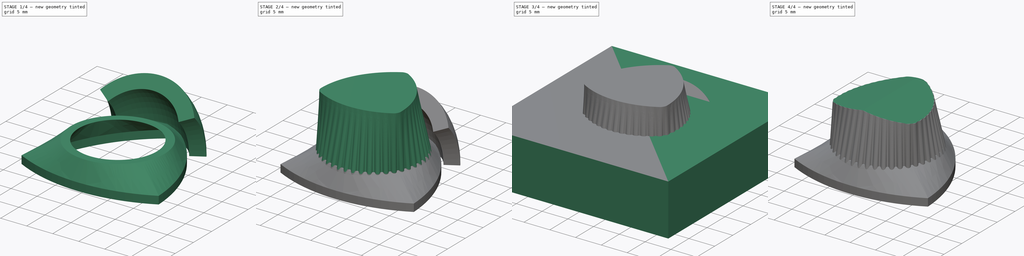
[diagram: build sequence overview — one tinted view per stage of 4, left to right]
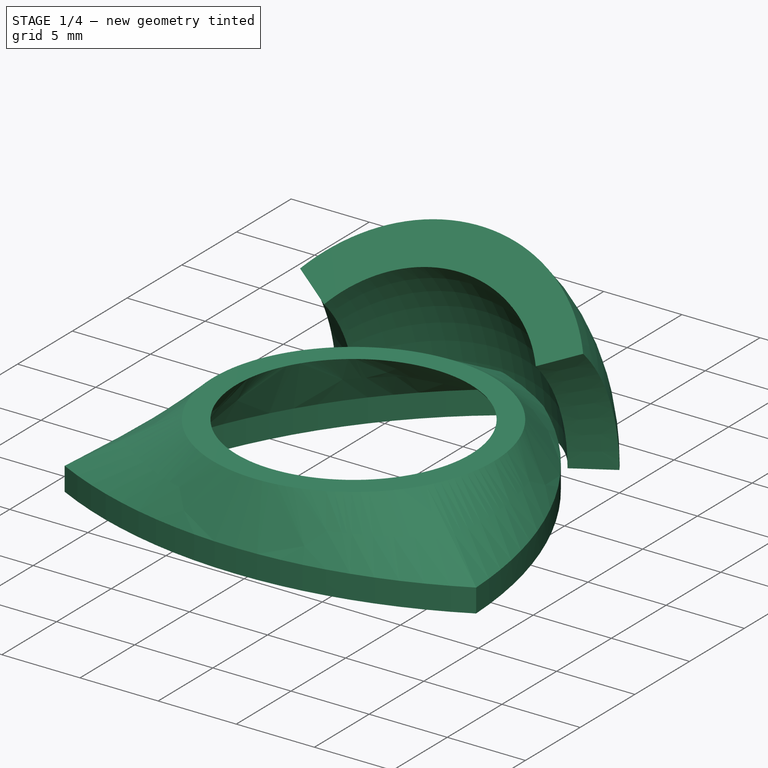
[diagram: stage 1 of 4 — iso view after this stage's code; geometry added in this stage tinted green]
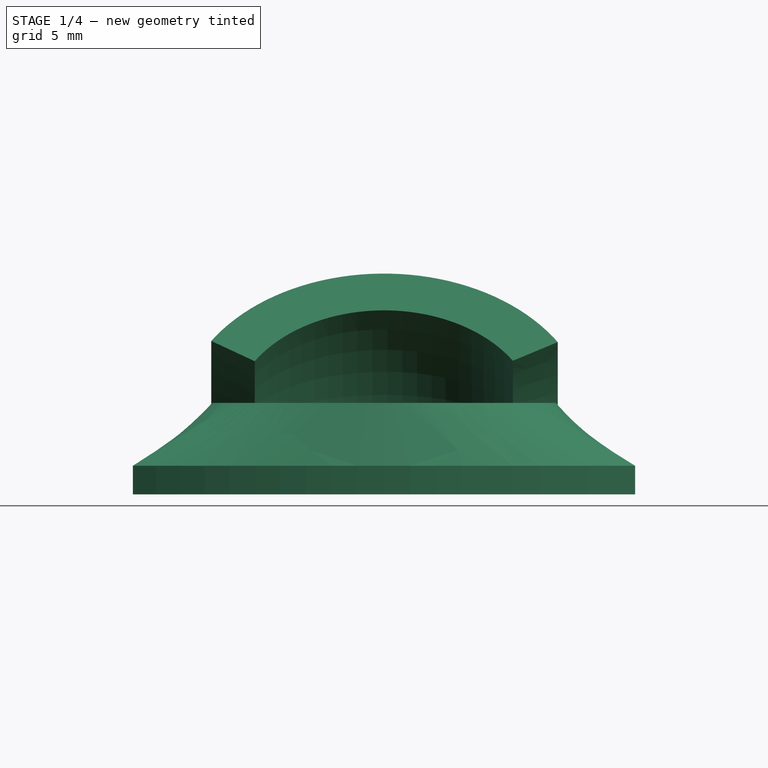
[diagram: stage 1 of 4 — front view after this stage's code; geometry added in this stage tinted green]
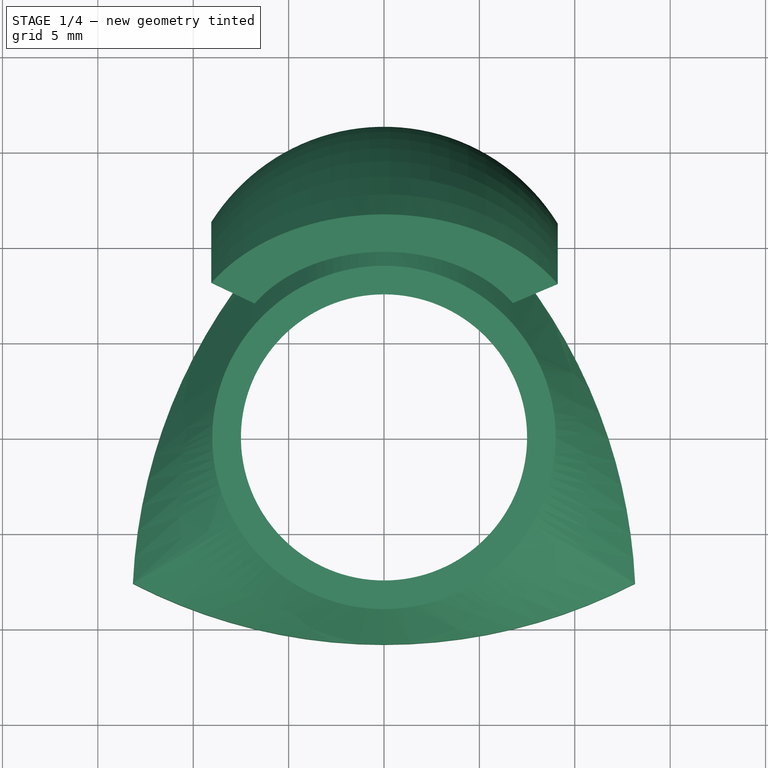
[diagram: stage 1 of 4 — top view after this stage's code; geometry added in this stage tinted green]
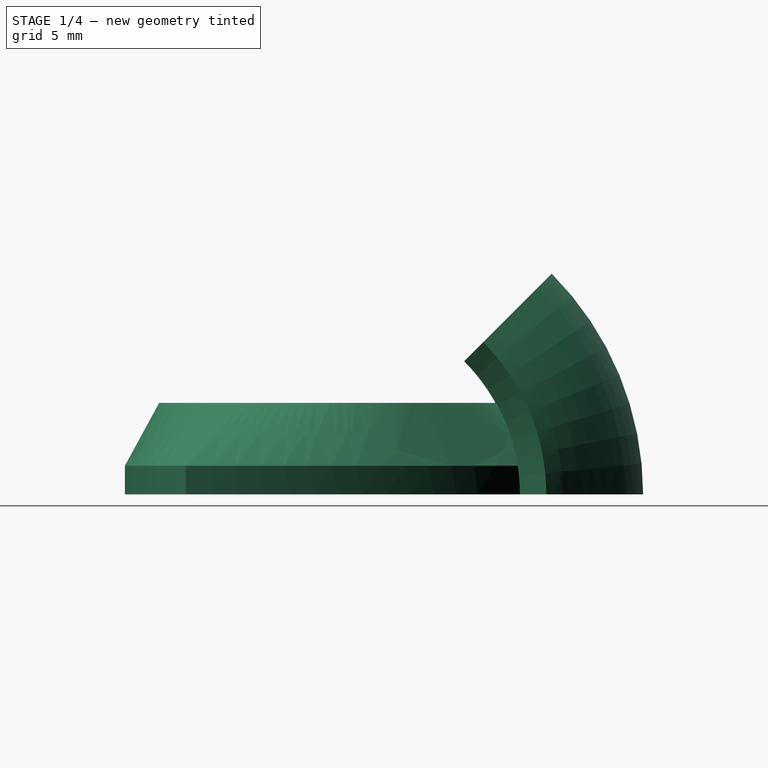
[diagram: stage 1 of 4 — right view after this stage's code; geometry added in this stage tinted green]
FCSTD DOCUMENT  (FreeCAD 0.19R24267 +99 (Git))
Label: knob
License: All rights reserved
LicenseURL: http://en.wikipedia.org/wiki/All_rights_reserved
objects: Sketcher::SketchObject×15, PartDesign::Body×5, PartDesign::Pad×3, PartDesign::Boolean×3, PartDesign::AdditiveLoft×2, PartDesign::Pocket×2, PartDesign::Revolution×1
note: 39 computed .brp shape members not serialized (recipe doc carries the construction recipe); baked Part::Feature solids carry a one-line shape summary decoded from their .brp

FEATURE [Sketcher::SketchObject] Sketch
  FullyConstrained = true
  MapMode = 5
  Support = -> [XY_Plane]
  sketch-geometry (15):
    g0: Circle CenterX=0 CenterY=0 CenterZ=0 NormalX=0 NormalY=0 NormalZ=1 AngleXU=0 Radius=2.9
    g1: Circle CenterX=0 CenterY=0 CenterZ=0 NormalX=0 NormalY=0 NormalZ=1 AngleXU=0 Radius=7.6
    g2: LineSegment StartX=0 StartY=0 StartZ=0 EndX=3e-16 EndY=-10.8 EndZ=0
    g3: LineSegment StartX=-13.1636 StartY=-7.6 StartZ=0 EndX=0 EndY=15.2 EndZ=0
    g4: LineSegment StartX=0 StartY=15.2 StartZ=0 EndX=13.1636 EndY=-7.6 EndZ=0
    g5: LineSegment StartX=13.1636 StartY=-7.6 StartZ=0 EndX=-13.1636 EndY=-7.6 EndZ=0
    g6: ArcOfCircle CenterX=15.4802 CenterY=-8.9375 CenterZ=0 NormalX=0 NormalY=0 NormalZ=1 AngleXU=0 Radius=28.675 StartAngle=2.14106 EndAngle=3.09493
    g7: ArcOfCircle CenterX=-15.4802 CenterY=-8.9375 CenterZ=0 NormalX=0 NormalY=0 NormalZ=1 AngleXU=0 Radius=28.675 StartAngle=0.0466603 EndAngle=1.00054
    g8: ArcOfCircle CenterX=8e-16 CenterY=17.875 CenterZ=0 NormalX=0 NormalY=0 NormalZ=1 AngleXU=0 Radius=28.675 StartAngle=4.23545 EndAngle=5.18933
    g9: LineSegment StartX=-13.1636 StartY=-7.6 StartZ=0 EndX=6.58179 EndY=3.8 EndZ=0
    g10: LineSegment StartX=13.1636 StartY=-7.6 StartZ=0 EndX=-6.58179 EndY=3.8 EndZ=0
    g11: LineSegment StartX=0 StartY=15.2 StartZ=0 EndX=2e-16 EndY=-7.6 EndZ=0
    g12: ArcOfCircle CenterX=17.0588 CenterY=-9.84891 CenterZ=0 NormalX=0 NormalY=0 NormalZ=1 AngleXU=0 Radius=28.675 StartAngle=2.20794 EndAngle=3.02805
    g13: ArcOfCircle CenterX=-17.0588 CenterY=-9.84891 CenterZ=0 NormalX=0 NormalY=0 NormalZ=1 AngleXU=0 Radius=28.675 StartAngle=0.113545 EndAngle=0.933652
    g14: ArcOfCircle CenterX=0 CenterY=19.6978 CenterZ=0 NormalX=0 NormalY=0 NormalZ=1 AngleXU=0 Radius=28.675 StartAngle=4.30234 EndAngle=5.12244
  constraints (44):
    c: Coincident(g0,g-1)
    c: Coincident(g1,g-1)
    c: PointOnObject(g2,g-2)
    c: DistanceY(g2,g2) = 10.8
    c: Diameter(g0) = 5.8
    c: PointOnObject(g3,g-2)
    c: Coincident(g3,g4)
    c: Coincident(g4,g5)
    c: Coincident(g5,g3)
    c: Horizontal(g5)
    c: Tangent(g1,g4)
    c: Tangent(g3,g1)
    c: Tangent(g5,g1)
    c: Equal(g5,g4)
    c: Coincident(g6,g3)
    c: Coincident(g6,g3)
    c: Coincident(g7,g6)
    c: Coincident(g7,g4)
    c: Coincident(g8,g6)
    c: Coincident(g8,g7)
    c: Equal(g6,g8)
    c: Equal(g7,g6)
    c: PointOnObject(g2,g8)
    c: PointOnObject(g2,g-1)
    c: DistanceY(g2,g6) = 26
    c: Coincident(g9,g6)
    c: Coincident(g10,g7)
    c: Coincident(g11,g6)
    c: PointOnObject(g11,g2)
    c: Symmetric(g7,g6,g9)
    c: Symmetric(g6,g6,g10)
    c: Symmetric(g6,g7,g11)
    c: PointOnObject(g12,g10)
    c: PointOnObject(g12,g9)
    c: PointOnObject(g13,g9)
    c: Coincident(g13,g12)
    c: PointOnObject(g13,g10)
    c: PointOnObject(g14,g11)
    c: Coincident(g14,g12)
    c: Coincident(g14,g13)
    c: Distance(g12,g6) = 2
    c: Equal(g12,g13)
    c: Equal(g14,g12)
    c: Equal(g14,g8)
FEATURE [PartDesign::Pad] Pad
  Direction = (1,1,1)
  Length = 1.5
  Length2 = 100
  Profile = -> Sketch
  Refine = true
  Type = 0
FEATURE [Sketcher::SketchObject] Sketch001
  AttachmentOffset = pos=(0,0,4.8) rot=(0,0,1;0rad)
  FullyConstrained = true
  MapMode = 5
  Placement = pos=(0,0,4.8) rot=(0,0,1;0rad)
  Support = -> [XY_Plane]
  sketch-geometry (2):
    g0: Circle CenterX=0 CenterY=0 CenterZ=0 NormalX=0 NormalY=0 NormalZ=1 AngleXU=0 Radius=9
    g1: Circle CenterX=0 CenterY=0 CenterZ=0 NormalX=0 NormalY=0 NormalZ=1 AngleXU=0 Radius=7.5
  constraints (4):
    c: Coincident(g0,g-1)
    c: Diameter(g0) = 18
    c: Coincident(g1,g0)
    c: Diameter(g1) = 15
FEATURE [Sketcher::SketchObject] Sketch002
  AttachmentOffset = pos=(0,0,1.5) rot=(0,0,1;0rad)
  FullyConstrained = true
  MapMode = 5
  Placement = pos=(0,0,1.5) rot=(0,0,1;0rad)
  Support = -> [XY_Plane]
  sketch-geometry (15):
    g0: Circle CenterX=0 CenterY=0 CenterZ=0 NormalX=0 NormalY=0 NormalZ=1 AngleXU=0 Radius=2.9
    g1: Circle CenterX=0 CenterY=0 CenterZ=0 NormalX=0 NormalY=0 NormalZ=1 AngleXU=0 Radius=7.6
    g2: LineSegment StartX=0 StartY=0 StartZ=0 EndX=3e-16 EndY=-10.8 EndZ=0
    g3: LineSegment StartX=-13.1636 StartY=-7.6 StartZ=0 EndX=5.3e-15 EndY=15.2 EndZ=0
    g4: LineSegment StartX=3.6e-15 StartY=15.2 StartZ=0 EndX=13.1636 EndY=-7.6 EndZ=0
    g5: LineSegment StartX=13.1636 StartY=-7.6 StartZ=0 EndX=-13.1636 EndY=-7.6 EndZ=0
    g6: ArcOfCircle CenterX=15.4802 CenterY=-8.9375 CenterZ=0 NormalX=0 NormalY=0 NormalZ=1 AngleXU=0 Radius=28.675 StartAngle=2.14106 EndAngle=3.09493
    g7: ArcOfCircle CenterX=-15.4802 CenterY=-8.9375 CenterZ=0 NormalX=0 NormalY=0 NormalZ=1 AngleXU=0 Radius=28.675 StartAngle=0.0466603 EndAngle=1.00054
    g8: ArcOfCircle CenterX=8e-16 CenterY=17.875 CenterZ=0 NormalX=0 NormalY=0 NormalZ=1 AngleXU=0 Radius=28.675 StartAngle=4.23545 EndAngle=5.18933
    g9: LineSegment StartX=-13.1636 StartY=-7.6 StartZ=0 EndX=6.58179 EndY=3.8 EndZ=0
    g10: LineSegment StartX=13.1636 StartY=-7.6 StartZ=0 EndX=-6.58179 EndY=3.8 EndZ=0
    g11: LineSegment StartX=3.6e-15 StartY=15.2 StartZ=0 EndX=2e-16 EndY=-7.6 EndZ=0
    g12: ArcOfCircle CenterX=17.0588 CenterY=-9.84891 CenterZ=0 NormalX=0 NormalY=0 NormalZ=1 AngleXU=0 Radius=28.675 StartAngle=2.20794 EndAngle=3.02805
    g13: ArcOfCircle CenterX=-17.0588 CenterY=-9.84891 CenterZ=0 NormalX=0 NormalY=0 NormalZ=1 AngleXU=0 Radius=28.675 StartAngle=0.113545 EndAngle=0.933652
    g14: ArcOfCircle CenterX=0 CenterY=19.6978 CenterZ=0 NormalX=0 NormalY=0 NormalZ=1 AngleXU=0 Radius=28.675 StartAngle=4.30234 EndAngle=5.12244
  constraints (44):
    c: Coincident(g0,g-1)
    c: Coincident(g1,g-1)
    c: PointOnObject(g2,g-2)
    c: DistanceY(g2,g2) = 10.8
    c: Diameter(g0) = 5.8
    c: PointOnObject(g3,g-2)
    c: Coincident(g3,g4)
    c: Coincident(g4,g5)
    c: Coincident(g5,g3)
    c: Horizontal(g5)
    c: Tangent(g1,g4)
    c: Tangent(g3,g1)
    c: Tangent(g5,g1)
    c: Equal(g5,g4)
    c: Coincident(g6,g3)
    c: Coincident(g6,g3)
    c: Coincident(g7,g6)
    c: Coincident(g7,g4)
    c: Coincident(g8,g6)
    c: Coincident(g8,g7)
    c: Equal(g6,g8)
    c: Equal(g7,g6)
    c: PointOnObject(g2,g8)
    c: PointOnObject(g2,g-1)
    c: DistanceY(g2,g6) = 26
    c: Coincident(g9,g6)
    c: Coincident(g10,g7)
    c: Coincident(g11,g6)
    c: PointOnObject(g11,g2)
    c: Symmetric(g7,g6,g9)
    c: Symmetric(g6,g6,g10)
    c: Symmetric(g6,g7,g11)
    c: PointOnObject(g12,g10)
    c: PointOnObject(g12,g9)
    c: PointOnObject(g13,g9)
    c: Coincident(g13,g12)
    c: PointOnObject(g13,g10)
    c: PointOnObject(g14,g11)
    c: Coincident(g14,g12)
    c: Coincident(g14,g13)
    c: Distance(g12,g6) = 2
    c: Equal(g12,g13)
    c: Equal(g14,g12)
    c: Equal(g14,g8)
FEATURE [PartDesign::AdditiveLoft] AdditiveLoft
  BaseFeature = -> Pad
  Closed = false
  Profile = -> Sketch002
  Refine = true
  Ruled = false
  Sections = -> [Sketch001]
FEATURE [Sketcher::SketchObject] Sketch006010
  FullyConstrained = false
  MapMode = 5
  Support = -> [XY_Plane004]
  sketch-geometry (4):
    g0: ArcOfCircle CenterX=0 CenterY=5.66957 CenterZ=0 NormalX=0 NormalY=0 NormalZ=1 AngleXU=0 Radius=7.97288 StartAngle=0.560165 EndAngle=2.58653
    g1: ArcOfCircle CenterX=0 CenterY=5.66957 CenterZ=0 NormalX=0 NormalY=0 NormalZ=1 AngleXU=0 Radius=10.6993 StartAngle=0.552892 EndAngle=2.57958
    g2: LineSegment StartX=-6.77591 StartY=9.87123 StartZ=0 EndX=-9.05362 EndY=11.3711 EndZ=0
    g3: LineSegment StartX=6.75436 StartY=9.90577 StartZ=0 EndX=9.10523 EndY=11.2883 EndZ=0
  constraints (6):
    c: PointOnObject(g0,g-2)
    c: Coincident(g1,g0)
    c: Coincident(g1,g3)
    c: Coincident(g1,g2)
    c: Coincident(g0,g3)
    c: Coincident(g0,g2)
FEATURE [PartDesign::Revolution] Revolution
  Angle = 45
  Axis = (1,0,0)
  Base = (0,0,0)
  Profile = -> Sketch006010
  ReferenceAxis = -> X_Axis004
  Refine = true
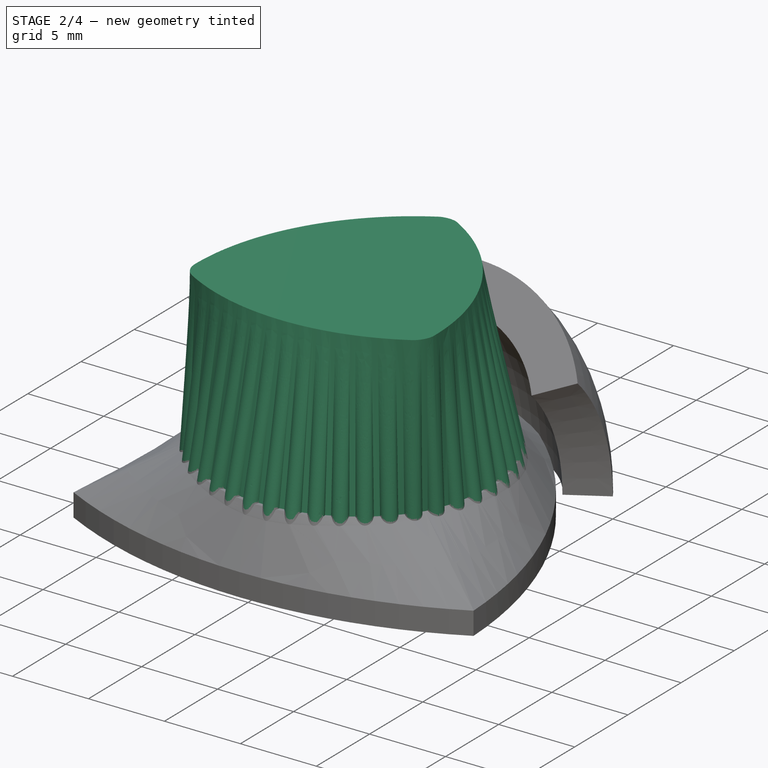
[diagram: stage 2 of 4 — iso view after this stage's code; geometry added in this stage tinted green]
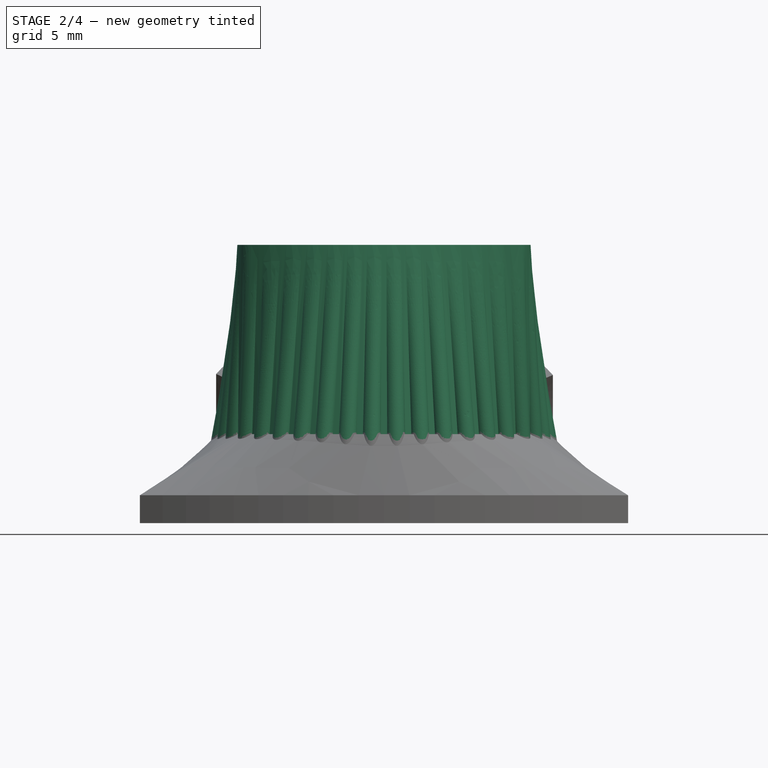
[diagram: stage 2 of 4 — front view after this stage's code; geometry added in this stage tinted green]
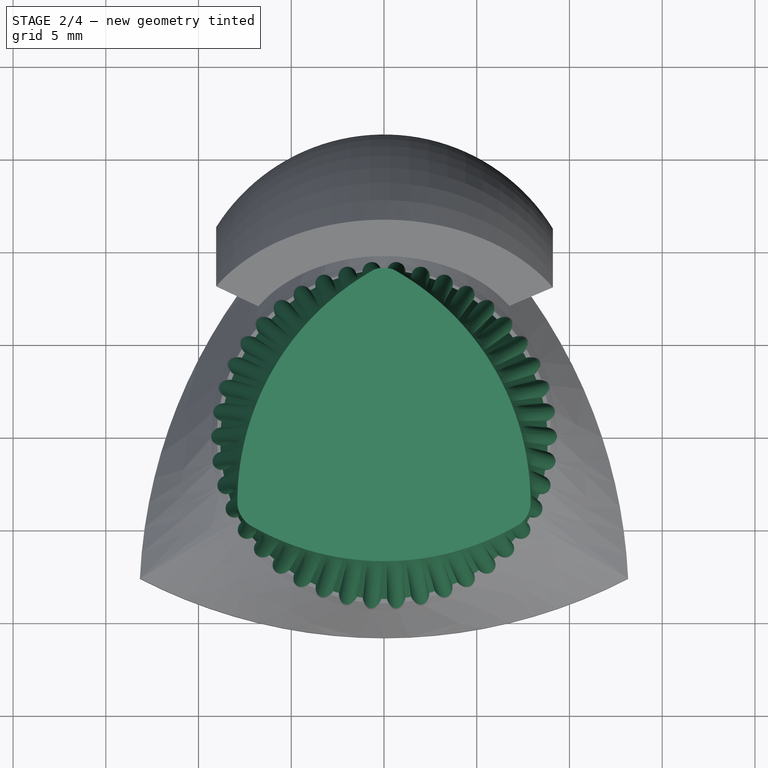
[diagram: stage 2 of 4 — top view after this stage's code; geometry added in this stage tinted green]
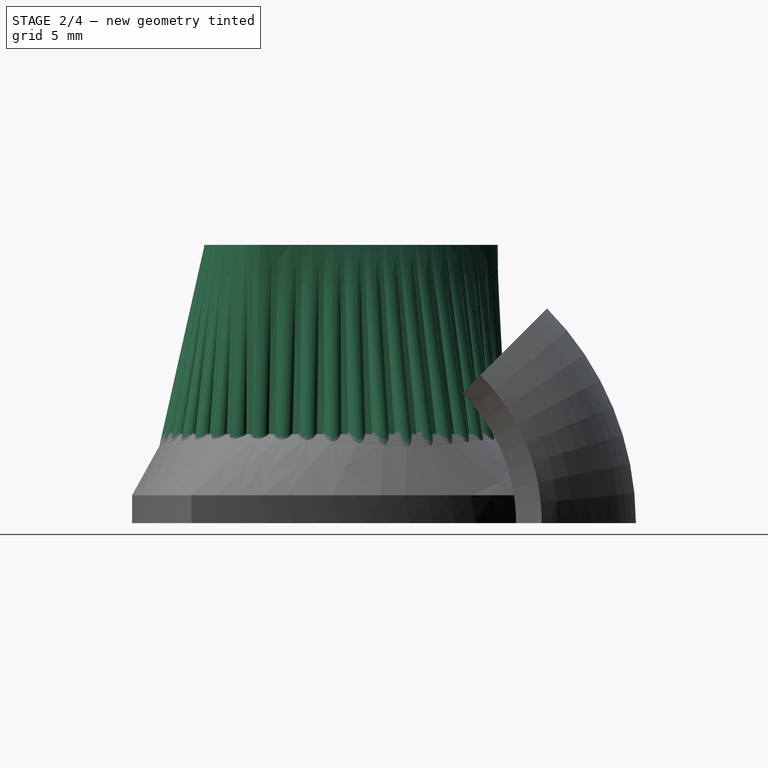
[diagram: stage 2 of 4 — right view after this stage's code; geometry added in this stage tinted green]
FEATURE [Sketcher::SketchObject] Sketch003
  AttachmentOffset = pos=(0,0,4.3) rot=(0,0,1;0rad)
  FullyConstrained = true
  MapMode = 5
  Placement = pos=(0,0,4.3) rot=(0,0,1;0rad)
  Support = -> [XY_Plane]
  sketch-geometry (2):
    g0: Circle CenterX=0 CenterY=0 CenterZ=0 NormalX=0 NormalY=0 NormalZ=1 AngleXU=0 Radius=9
    g1: Circle CenterX=0 CenterY=0 CenterZ=0 NormalX=0 NormalY=0 NormalZ=1 AngleXU=0 Radius=7.5
  constraints (4):
    c: Coincident(g0,g-1)
    c: Diameter(g0) = 18
    c: Coincident(g1,g0)
    c: Diameter(g1) = 15
FEATURE [Sketcher::SketchObject] Sketch004
  AttachmentOffset = pos=(0,0,15) rot=(0,0,1;0rad)
  FullyConstrained = true
  MapMode = 5
  Placement = pos=(0,0,15) rot=(0,0,1;0rad)
  Support = -> [XY_Plane]
  sketch-geometry (15):
    g0: Circle CenterX=0 CenterY=0 CenterZ=0 NormalX=0 NormalY=0 NormalZ=1 AngleXU=0 Radius=2.9
    g1: Circle CenterX=0 CenterY=0 CenterZ=0 NormalX=0 NormalY=0 NormalZ=1 AngleXU=0 Radius=4.55
    g2: LineSegment StartX=0 StartY=0 StartZ=0 EndX=-5e-16 EndY=-6.9 EndZ=0
    g3: LineSegment StartX=-7.88083 StartY=-4.55 StartZ=0 EndX=9e-16 EndY=9.1 EndZ=0
    g4: LineSegment StartX=0 StartY=9.1 StartZ=0 EndX=7.88083 EndY=-4.55 EndZ=0
    g5: LineSegment StartX=7.88083 StartY=-4.55 StartZ=0 EndX=-7.88083 EndY=-4.55 EndZ=0
    g6: ArcOfCircle CenterX=6.48598 CenterY=-3.74468 CenterZ=0 NormalX=0 NormalY=0 NormalZ=1 AngleXU=0 Radius=14.3894 StartAngle=2.0384 EndAngle=3.19759
    g7: ArcOfCircle CenterX=-6.48598 CenterY=-3.74468 CenterZ=0 NormalX=0 NormalY=0 NormalZ=1 AngleXU=0 Radius=14.3894 StartAngle=6.22719 EndAngle=7.38638
    g8: ArcOfCircle CenterX=-1.6e-15 CenterY=7.48936 CenterZ=0 NormalX=0 NormalY=0 NormalZ=1 AngleXU=0 Radius=14.3894 StartAngle=4.13279 EndAngle=5.29198
    g9: LineSegment StartX=-7.88083 StartY=-4.55 StartZ=0 EndX=3.94042 EndY=2.275 EndZ=0
    g10: LineSegment StartX=7.88083 StartY=-4.55 StartZ=0 EndX=-3.94042 EndY=2.275 EndZ=0
    g11: LineSegment StartX=0 StartY=9.1 StartZ=0 EndX=-3e-16 EndY=-4.55 EndZ=0
    g12: ArcOfCircle CenterX=8.19214 CenterY=-4.72973 CenterZ=0 NormalX=0 NormalY=0 NormalZ=1 AngleXU=0 Radius=14.3894 StartAngle=2.17647 EndAngle=3.05951
    g13: ArcOfCircle CenterX=-8.19214 CenterY=-4.72973 CenterZ=0 NormalX=0 NormalY=0 NormalZ=1 AngleXU=0 Radius=14.3894 StartAngle=0.0820786 EndAngle=0.965119
    g14: ArcOfCircle CenterX=0 CenterY=9.45947 CenterZ=0 NormalX=0 NormalY=0 NormalZ=1 AngleXU=0 Radius=14.3894 StartAngle=4.27087 EndAngle=5.15391
  constraints (44):
    c: Coincident(g0,g-1)
    c: Coincident(g1,g-1)
    c: PointOnObject(g2,g-2)
    c: Diameter(g0) = 5.8
    c: PointOnObject(g3,g-2)
    c: Coincident(g3,g4)
    c: Coincident(g4,g5)
    c: Coincident(g5,g3)
    c: Horizontal(g5)
    c: Tangent(g1,g4)
    c: Tangent(g3,g1)
    c: Tangent(g5,g1)
    c: Equal(g5,g4)
    c: Coincident(g6,g3)
    c: Coincident(g6,g3)
    c: Coincident(g7,g6)
    c: Coincident(g7,g4)
    c: Coincident(g8,g6)
    c: Coincident(g8,g7)
    c: Equal(g6,g8)
    c: Equal(g7,g6)
    c: PointOnObject(g2,g8)
    c: PointOnObject(g2,g-1)
    c: DistanceY(g2,g6) = 16
    c: Coincident(g9,g6)
    c: Coincident(g10,g7)
    c: Coincident(g11,g6)
    c: PointOnObject(g11,g2)
    c: Symmetric(g7,g6,g9)
    c: Symmetric(g6,g6,g10)
    c: Symmetric(g6,g7,g11)
    c: PointOnObject(g12,g10)
    c: PointOnObject(g12,g9)
    c: PointOnObject(g13,g9)
    c: Coincident(g13,g12)
    c: PointOnObject(g13,g10)
    c: PointOnObject(g14,g11)
    c: Coincident(g14,g12)
    c: Coincident(g14,g13)
    c: Distance(g12,g6) = 2
    c: Equal(g12,g13)
    c: Equal(g14,g12)
    c: Equal(g14,g8)
    c: DistanceY(g2,g2) = 6.9
FEATURE [Sketcher::SketchObject] Sketch005
  AttachmentOffset = pos=(0,0,13.5) rot=(0,0,1;0rad)
  FullyConstrained = true
  MapMode = 5
  Placement = pos=(0,0,13.5) rot=(0,0,1;0rad)
  Support = -> [XY_Plane]
  sketch-geometry (11):
    g0: Circle CenterX=0 CenterY=0 CenterZ=0 NormalX=0 NormalY=0 NormalZ=1 AngleXU=0 Radius=4.55
    g1: LineSegment StartX=0 StartY=0 StartZ=0 EndX=-5e-16 EndY=-6.9 EndZ=0
    g2: LineSegment StartX=-7.88083 StartY=-4.55 StartZ=0 EndX=-1.4673e-12 EndY=9.1 EndZ=0
    g3: LineSegment StartX=-1.4673e-12 StartY=9.1 StartZ=0 EndX=7.88083 EndY=-4.55 EndZ=0
    g4: LineSegment StartX=7.88083 StartY=-4.55 StartZ=0 EndX=-7.88083 EndY=-4.55 EndZ=0
    g5: ArcOfCircle CenterX=6.48598 CenterY=-3.74468 CenterZ=0 NormalX=0 NormalY=0 NormalZ=1 AngleXU=0 Radius=14.3894 StartAngle=2.0384 EndAngle=3.19759
    g6: ArcOfCircle CenterX=-6.48598 CenterY=-3.74468 CenterZ=0 NormalX=0 NormalY=0 NormalZ=1 AngleXU=0 Radius=14.3894 StartAngle=6.22719 EndAngle=7.38638
    g7: ArcOfCircle CenterX=-1.6e-15 CenterY=7.48936 CenterZ=0 NormalX=0 NormalY=0 NormalZ=1 AngleXU=0 Radius=14.3894 StartAngle=4.13279 EndAngle=5.29198
    g8: LineSegment StartX=-7.88083 StartY=-4.55 StartZ=0 EndX=3.94042 EndY=2.275 EndZ=0
    g9: LineSegment StartX=7.88083 StartY=-4.55 StartZ=0 EndX=-3.94042 EndY=2.275 EndZ=0
    g10: LineSegment StartX=-1.4673e-12 StartY=9.1 StartZ=0 EndX=-3e-16 EndY=-4.55 EndZ=0
  constraints (30):
    c: Coincident(g0,g-1)
    c: PointOnObject(g1,g-2)
    c: PointOnObject(g2,g-2)
    c: Coincident(g2,g3)
    c: Coincident(g3,g4)
    c: Coincident(g4,g2)
    c: Horizontal(g4)
    c: Tangent(g0,g3)
    c: Tangent(g2,g0)
    c: Tangent(g4,g0)
    c: Equal(g4,g3)
    c: Coincident(g5,g2)
    c: Coincident(g5,g2)
    c: Coincident(g6,g5)
    c: Coincident(g6,g3)
    c: Coincident(g7,g5)
    c: Coincident(g7,g6)
    c: Equal(g5,g7)
    c: Equal(g6,g5)
    c: PointOnObject(g1,g7)
    c: PointOnObject(g1,g-1)
    c: DistanceY(g1,g5) = 16
    c: Coincident(g8,g5)
    c: Coincident(g9,g6)
    c: Coincident(g10,g5)
    c: PointOnObject(g10,g1)
    c: Symmetric(g6,g5,g8)
    c: Symmetric(g5,g5,g9)
    c: Symmetric(g5,g6,g10)
    c: DistanceY(g1,g1) = 6.9
FEATURE [Sketcher::SketchObject] Sketch006
  AttachmentOffset = pos=(0,0,15) rot=(0,0,1;0rad)
  FullyConstrained = false
  MapMode = 5
  Placement = pos=(0,0,15) rot=(0,0,1;0rad)
  Support = -> [XY_Plane]
  sketch-geometry (18):
    g0: Circle CenterX=0 CenterY=0 CenterZ=0 NormalX=0 NormalY=0 NormalZ=1 AngleXU=0 Radius=2.9
    g1: Circle CenterX=0 CenterY=0 CenterZ=0 NormalX=0 NormalY=0 NormalZ=1 AngleXU=0 Radius=4.55
    g2: LineSegment StartX=0 StartY=0 StartZ=0 EndX=-0.0160552 EndY=-6.9 EndZ=0
    g3: LineSegment StartX=-7.88083 StartY=-4.55 StartZ=0 EndX=0 EndY=9.1 EndZ=0
    g4: LineSegment StartX=0 StartY=9.1 StartZ=0 EndX=7.88083 EndY=-4.55 EndZ=0
    g5: LineSegment StartX=7.88083 StartY=-4.55 StartZ=0 EndX=-7.88083 EndY=-4.55 EndZ=0
    g6: ArcOfCircle CenterX=6.4972 CenterY=-3.75116 CenterZ=0 NormalX=0 NormalY=0 NormalZ=1 AngleXU=0 Radius=14.405 StartAngle=2.0809 EndAngle=3.13764
    g7: ArcOfCircle CenterX=-6.50196 CenterY=-3.74998 CenterZ=0 NormalX=0 NormalY=0 NormalZ=1 AngleXU=0 Radius=14.405 StartAngle=6.27367 EndAngle=7.34371
    g8: ArcOfCircle CenterX=-0.00467443 CenterY=7.50501 CenterZ=0 NormalX=0 NormalY=0 NormalZ=1 AngleXU=0 Radius=14.405 StartAngle=4.1927 EndAngle=5.24556
    g9: LineSegment StartX=-7.88083 StartY=-4.55 StartZ=0 EndX=3.94042 EndY=2.275 EndZ=0
    g10: LineSegment StartX=7.88083 StartY=-4.55 StartZ=0 EndX=-3.94042 EndY=2.275 EndZ=0
    g11: LineSegment StartX=0 StartY=9.1 StartZ=0 EndX=-0.0105869 EndY=-4.54993 EndZ=0
    g12: ArcOfCircle CenterX=8.20725 CenterY=-4.73846 CenterZ=0 NormalX=0 NormalY=0 NormalZ=1 AngleXU=0 Radius=14.405 StartAngle=2.17698 EndAngle=3.05899
    g13: ArcOfCircle CenterX=-8.20702 CenterY=-4.73832 CenterZ=0 NormalX=0 NormalY=0 NormalZ=1 AngleXU=0 Radius=14.405 StartAngle=0.0825822 EndAngle=0.964597
    g14: ArcOfCircle CenterX=0.000292234 CenterY=9.47678 CenterZ=0 NormalX=0 NormalY=0 NormalZ=1 AngleXU=0 Radius=14.405 StartAngle=4.27137 EndAngle=5.15338
    g15: ArcOfCircle CenterX=-0.00131853 CenterY=7.4 CenterZ=0 NormalX=0 NormalY=0 NormalZ=1 AngleXU=0 Radius=1.51744 StartAngle=1.21048 EndAngle=1.93111
    g16: ArcOfCircle CenterX=-6.40846 CenterY=-3.69992 CenterZ=0 NormalX=0 NormalY=0 NormalZ=1 AngleXU=0 Radius=1.49926 StartAngle=3.13776 EndAngle=4.18857
    g17: ArcOfCircle CenterX=6.39736 CenterY=-3.69352 CenterZ=0 NormalX=0 NormalY=0 NormalZ=1 AngleXU=0 Radius=1.51744 StartAngle=5.36344 EndAngle=6.15534
  constraints (52):
    c: Coincident(g0,g-1)
    c: Coincident(g1,g-1)
    c: PointOnObject(g2,g-2)
    c: Diameter(g0) = 5.8
    c: PointOnObject(g3,g-2)
    c: Coincident(g3,g4)
    c: Coincident(g4,g5)
    c: Coincident(g5,g3)
    c: Horizontal(g5)
    c: Tangent(g1,g4)
    c: Tangent(g3,g1)
    c: Tangent(g5,g1)
    c: Equal(g5,g4)
    c: Equal(g6,g8)
    c: Equal(g7,g6)
    c: PointOnObject(g2,g8)
    c: PointOnObject(g2,g-1)
    c: DistanceY(g2,g3) = 16
    c: Coincident(g9,g3)
    c: Coincident(g10,g4)
    c: Coincident(g11,g3)
    c: PointOnObject(g11,g2)
    c: PointOnObject(g12,g10)
    c: PointOnObject(g12,g9)
    c: PointOnObject(g13,g9)
    c: Coincident(g13,g12)
    c: PointOnObject(g13,g10)
    c: PointOnObject(g14,g11)
    c: Coincident(g14,g12)
    c: Coincident(g14,g13)
    c: Distance(g12,g3) = 2
    c: Equal(g12,g13)
    c: Equal(g14,g12)
    c: Equal(g14,g8)
    c: DistanceY(g2,g2) = 6.9
    c: PointOnObject(g15,g11)
    c: Coincident(g6,g15)
    c: Coincident(g7,g15)
    c: DistanceY(g12,g15) = 0.3
    c: DistanceX(g6,g7) = 1.07
    c: Horizontal(g6,g7)
    c: DistanceY(g6,g3) = 0.28
    c: PointOnObject(g16,g9)
    c: Distance(g16,g12) = 0.3
    c: Coincident(g6,g16)
    c: Coincident(g8,g16)
    c: PointOnObject(g17,g10)
    c: Symmetric(g3,g3,g10)
    c: PointOnObject(g6,g10)
    c: Equal(g17,g15)
    c: Coincident(g17,g8)
    c: Coincident(g17,g7)
FEATURE [Sketcher::SketchObject] Sketch007
  AttachmentOffset = pos=(0,0,6) rot=(0,0,1;0rad)
  FullyConstrained = true
  MapMode = 5
  Placement = pos=(0,0,6) rot=(0,0,1;0rad)
  Support = -> [XY_Plane]
  sketch-geometry (2):
    g0: Circle CenterX=0 CenterY=0 CenterZ=0 NormalX=0 NormalY=0 NormalZ=1 AngleXU=0 Radius=3
    g1: Circle CenterX=0 CenterY=0 CenterZ=0 NormalX=0 NormalY=0 NormalZ=1 AngleXU=0 Radius=5
  constraints (4):
    c: Coincident(g0,g-1)
    c: Diameter(g0) = 6
    c: Coincident(g1,g0)
    c: Diameter(g1) = 10
FEATURE [Sketcher::SketchObject] Sketch008
  AttachmentOffset = pos=(0,0,4.3) rot=(0,0,1;0rad)
  FullyConstrained = true
  MapMode = 5
  Placement = pos=(0,0,4.3) rot=(0,0,1;0rad)
  Support = -> [XY_Plane]
  sketch-geometry (2):
    g0: Circle CenterX=0 CenterY=0 CenterZ=0 NormalX=0 NormalY=0 NormalZ=1 AngleXU=0 Radius=9
    g1: Circle CenterX=0 CenterY=0 CenterZ=0 NormalX=0 NormalY=0 NormalZ=1 AngleXU=0 Radius=7.5
  constraints (4):
    c: Coincident(g0,g-1)
    c: Diameter(g0) = 18
    c: Coincident(g1,g0)
    c: Diameter(g1) = 15
FEATURE [Sketcher::SketchObject] Sketch006004
  FullyConstrained = false
  Placement = pos=(0,0,3.5) rot=(0,0,1;0rad)
  sketch-geometry (105):
    g0: ArcOfCircle CenterX=0 CenterY=0 CenterZ=0 NormalX=0 NormalY=0 NormalZ=1 AngleXU=0 Radius=9 StartAngle=6.18915 EndAngle=6.22762
    g1: ArcOfCircle CenterX=9 CenterY=0 CenterZ=0 NormalX=0 NormalY=0 NormalZ=1 AngleXU=0 Radius=0.5 StartAngle=4.68461 EndAngle=6.28319
    g2: ArcOfCircle CenterX=9 CenterY=0 CenterZ=0 NormalX=0 NormalY=0 NormalZ=1 AngleXU=0 Radius=0.5 StartAngle=0 EndAngle=1.59858
    g3: ArcOfCircle CenterX=0 CenterY=0 CenterZ=0 NormalX=0 NormalY=0 NormalZ=1 AngleXU=0 Radius=9 StartAngle=0.0555627 EndAngle=0.0940369
    g4: ArcOfCircle CenterX=8.89948 CenterY=1.34138 CenterZ=0 NormalX=0 NormalY=0 NormalZ=1 AngleXU=0 Radius=0.5 StartAngle=4.83421 EndAngle=6.28319
    g5: ArcOfCircle CenterX=8.89948 CenterY=1.34138 CenterZ=0 NormalX=0 NormalY=0 NormalZ=1 AngleXU=0 Radius=0.5 StartAngle=0 EndAngle=1.74818
    g6: ArcOfCircle CenterX=0 CenterY=0 CenterZ=0 NormalX=0 NormalY=0 NormalZ=1 AngleXU=0 Radius=9 StartAngle=0.205162 EndAngle=0.243637
    g7: ArcOfCircle CenterX=8.60016 CenterY=2.6528 CenterZ=0 NormalX=0 NormalY=0 NormalZ=1 AngleXU=0 Radius=0.5 StartAngle=4.98381 EndAngle=6.28319
    g8: ArcOfCircle CenterX=8.60016 CenterY=2.6528 CenterZ=0 NormalX=0 NormalY=0 NormalZ=1 AngleXU=0 Radius=0.5 StartAngle=0 EndAngle=1.89778
    g9: ArcOfCircle CenterX=0 CenterY=0 CenterZ=0 NormalX=0 NormalY=0 NormalZ=1 AngleXU=0 Radius=9 StartAngle=0.354762 EndAngle=0.393236
    g10: ArcOfCircle CenterX=8.10872 CenterY=3.90495 CenterZ=0 NormalX=0 NormalY=0 NormalZ=1 AngleXU=0 Radius=0.5 StartAngle=5.13341 EndAngle=6.28319
    g11: ArcOfCircle CenterX=8.10872 CenterY=3.90495 CenterZ=0 NormalX=0 NormalY=0 NormalZ=1 AngleXU=0 Radius=0.5 StartAngle=0 EndAngle=2.04738
    g12: ArcOfCircle CenterX=0 CenterY=0 CenterZ=0 NormalX=0 NormalY=0 NormalZ=1 AngleXU=0 Radius=9 StartAngle=0.504362 EndAngle=0.542836
    g13: ArcOfCircle CenterX=7.43615 CenterY=5.06988 CenterZ=0 NormalX=0 NormalY=0 NormalZ=1 AngleXU=0 Radius=0.5 StartAngle=5.28301 EndAngle=6.28319
    g14: ArcOfCircle CenterX=7.43615 CenterY=5.06988 CenterZ=0 NormalX=0 NormalY=0 NormalZ=1 AngleXU=0 Radius=0.5 StartAngle=0 EndAngle=2.19698
    g15: ArcOfCircle CenterX=0 CenterY=0 CenterZ=0 NormalX=0 NormalY=0 NormalZ=1 AngleXU=0 Radius=9 StartAngle=0.653961 EndAngle=0.692436
    g16: ArcOfCircle CenterX=6.59747 CenterY=6.12155 CenterZ=0 NormalX=0 NormalY=0 NormalZ=1 AngleXU=0 Radius=0.5 StartAngle=5.43261 EndAngle=6.28319
    g17: ArcOfCircle CenterX=6.59747 CenterY=6.12155 CenterZ=0 NormalX=0 NormalY=0 NormalZ=1 AngleXU=0 Radius=0.5 StartAngle=0 EndAngle=2.34658
    g18: ArcOfCircle CenterX=0 CenterY=0 CenterZ=0 NormalX=0 NormalY=0 NormalZ=1 AngleXU=0 Radius=9 StartAngle=0.803561 EndAngle=0.842035
    g19: ArcOfCircle CenterX=5.61141 CenterY=7.03648 CenterZ=0 NormalX=0 NormalY=0 NormalZ=1 AngleXU=0 Radius=0.5 StartAngle=5.58221 EndAngle=6.28319
    g20: ArcOfCircle CenterX=5.61141 CenterY=7.03648 CenterZ=0 NormalX=0 NormalY=0 NormalZ=1 AngleXU=0 Radius=0.5 StartAngle=0 EndAngle=2.49618
    g21: ArcOfCircle CenterX=0 CenterY=0 CenterZ=0 NormalX=0 NormalY=0 NormalZ=1 AngleXU=0 Radius=9 StartAngle=0.953161 EndAngle=0.991635
    g22: ArcOfCircle CenterX=4.5 CenterY=7.79423 CenterZ=0 NormalX=0 NormalY=0 NormalZ=1 AngleXU=0 Radius=0.5 StartAngle=5.73181 EndAngle=6.28319
    g23: ArcOfCircle CenterX=4.5 CenterY=7.79423 CenterZ=0 NormalX=0 NormalY=0 NormalZ=1 AngleXU=0 Radius=0.5 StartAngle=0 EndAngle=2.64578
    g24: ArcOfCircle CenterX=0 CenterY=0 CenterZ=0 NormalX=0 NormalY=0 NormalZ=1 AngleXU=0 Radius=9 StartAngle=1.10276 EndAngle=1.14123
    g25: ArcOfCircle CenterX=3.28807 CenterY=8.37786 CenterZ=0 NormalX=0 NormalY=0 NormalZ=1 AngleXU=0 Radius=0.5 StartAngle=5.8814 EndAngle=6.28319
    g26: ArcOfCircle CenterX=3.28807 CenterY=8.37786 CenterZ=0 NormalX=0 NormalY=0 NormalZ=1 AngleXU=0 Radius=0.5 StartAngle=0 EndAngle=2.79537
    g27: ArcOfCircle CenterX=0 CenterY=0 CenterZ=0 NormalX=0 NormalY=0 NormalZ=1 AngleXU=0 Radius=9 StartAngle=1.25236 EndAngle=1.29083
    g28: ArcOfCircle CenterX=2.00269 CenterY=8.77435 CenterZ=0 NormalX=0 NormalY=0 NormalZ=1 AngleXU=0 Radius=0.5 StartAngle=6.031 EndAngle=6.28319
    g29: ArcOfCircle CenterX=2.00269 CenterY=8.77435 CenterZ=0 NormalX=0 NormalY=0 NormalZ=1 AngleXU=0 Radius=0.5 StartAngle=0 EndAngle=2.94497
    g30: ArcOfCircle CenterX=0 CenterY=0 CenterZ=0 NormalX=0 NormalY=0 NormalZ=1 AngleXU=0 Radius=9 StartAngle=1.40196 EndAngle=1.44043
    g31: ArcOfCircle CenterX=0.672571 CenterY=8.97483 CenterZ=0 NormalX=0 NormalY=0 NormalZ=1 AngleXU=0 Radius=0.5 StartAngle=6.1806 EndAngle=6.28319
    g32: ArcOfCircle CenterX=0.672571 CenterY=8.97483 CenterZ=0 NormalX=0 NormalY=0 NormalZ=1 AngleXU=0 Radius=0.5 StartAngle=0 EndAngle=3.09457
    g33: ArcOfCircle CenterX=0 CenterY=0 CenterZ=0 NormalX=0 NormalY=0 NormalZ=1 AngleXU=0 Radius=9 StartAngle=1.55156 EndAngle=1.59003
    g34: ArcOfCircle CenterX=-0.672571 CenterY=8.97483 CenterZ=0 NormalX=0 NormalY=0 NormalZ=1 AngleXU=0 Radius=0.5 StartAngle=0.0470185 EndAngle=3.24417
    g35: ArcOfCircle CenterX=0 CenterY=0 CenterZ=0 NormalX=0 NormalY=0 NormalZ=1 AngleXU=0 Radius=9 StartAngle=1.70116 EndAngle=1.73963
    g36: ArcOfCircle CenterX=-2.00269 CenterY=8.77435 CenterZ=0 NormalX=0 NormalY=0 NormalZ=1 AngleXU=0 Radius=0.5 StartAngle=0.196618 EndAngle=3.39377
    g37: ArcOfCircle CenterX=0 CenterY=0 CenterZ=0 NormalX=0 NormalY=0 NormalZ=1 AngleXU=0 Radius=9 StartAngle=1.85076 EndAngle=1.88923
    g38: ArcOfCircle CenterX=-3.28807 CenterY=8.37786 CenterZ=0 NormalX=0 NormalY=0 NormalZ=1 AngleXU=0 Radius=0.5 StartAngle=0.346218 EndAngle=3.54337
    g39: ArcOfCircle CenterX=0 CenterY=0 CenterZ=0 NormalX=0 NormalY=0 NormalZ=1 AngleXU=0 Radius=9 StartAngle=2.00036 EndAngle=2.03883
    g40: ArcOfCircle CenterX=-4.5 CenterY=7.79423 CenterZ=0 NormalX=0 NormalY=0 NormalZ=1 AngleXU=0 Radius=0.5 StartAngle=0.495817 EndAngle=3.69297
    g41: ArcOfCircle CenterX=0 CenterY=0 CenterZ=0 NormalX=0 NormalY=0 NormalZ=1 AngleXU=0 Radius=9 StartAngle=2.14996 EndAngle=2.18843
    g42: ArcOfCircle CenterX=-5.61141 CenterY=7.03648 CenterZ=0 NormalX=0 NormalY=0 NormalZ=1 AngleXU=0 Radius=0.5 StartAngle=0.645417 EndAngle=3.84257
    g43: ArcOfCircle CenterX=0 CenterY=0 CenterZ=0 NormalX=0 NormalY=0 NormalZ=1 AngleXU=0 Radius=9 StartAngle=2.29956 EndAngle=2.33803
    g44: ArcOfCircle CenterX=-6.59747 CenterY=6.12155 CenterZ=0 NormalX=0 NormalY=0 NormalZ=1 AngleXU=0 Radius=0.5 StartAngle=0.795017 EndAngle=3.99217
    g45: ArcOfCircle CenterX=0 CenterY=0 CenterZ=0 NormalX=0 NormalY=0 NormalZ=1 AngleXU=0 Radius=9 StartAngle=2.44916 EndAngle=2.48763
    g46: ArcOfCircle CenterX=-7.43615 CenterY=5.06988 CenterZ=0 NormalX=0 NormalY=0 NormalZ=1 AngleXU=0 Radius=0.5 StartAngle=0.944616 EndAngle=4.14177
    g47: ArcOfCircle CenterX=0 CenterY=0 CenterZ=0 NormalX=0 NormalY=0 NormalZ=1 AngleXU=0 Radius=9 StartAngle=2.59876 EndAngle=2.63723
    g48: ArcOfCircle CenterX=-8.10872 CenterY=3.90495 CenterZ=0 NormalX=0 NormalY=0 NormalZ=1 AngleXU=0 Radius=0.5 StartAngle=1.09422 EndAngle=4.29137
    g49: ArcOfCircle CenterX=0 CenterY=0 CenterZ=0 NormalX=0 NormalY=0 NormalZ=1 AngleXU=0 Radius=9 StartAngle=2.74836 EndAngle=2.78683
    g50: ArcOfCircle CenterX=-8.60016 CenterY=2.6528 CenterZ=0 NormalX=0 NormalY=0 NormalZ=1 AngleXU=0 Radius=0.5 StartAngle=1.24382 EndAngle=4.44097
    g51: ArcOfCircle CenterX=0 CenterY=0 CenterZ=0 NormalX=0 NormalY=0 NormalZ=1 AngleXU=0 Radius=9 StartAngle=2.89796 EndAngle=2.93643
    g52: ArcOfCircle CenterX=-8.89948 CenterY=1.34138 CenterZ=0 NormalX=0 NormalY=0 NormalZ=1 AngleXU=0 Radius=0.5 StartAngle=1.39342 EndAngle=4.59057
    g53: ArcOfCircle CenterX=0 CenterY=0 CenterZ=0 NormalX=0 NormalY=0 NormalZ=1 AngleXU=0 Radius=9 StartAngle=3.04756 EndAngle=3.08603
    g54: ArcOfCircle CenterX=-9 CenterY=1.1e-15 CenterZ=0 NormalX=0 NormalY=0 NormalZ=1 AngleXU=0 Radius=0.5 StartAngle=1.54301 EndAngle=4.74017
    g55: ArcOfCircle CenterX=0 CenterY=0 CenterZ=0 NormalX=0 NormalY=0 NormalZ=1 AngleXU=0 Radius=9 StartAngle=3.19716 EndAngle=3.23563
    g56: ArcOfCircle CenterX=-8.89948 CenterY=-1.34138 CenterZ=0 NormalX=0 NormalY=0 NormalZ=1 AngleXU=0 Radius=0.5 StartAngle=1.69261 EndAngle=4.88977
    g57: ArcOfCircle CenterX=0 CenterY=0 CenterZ=0 NormalX=0 NormalY=0 NormalZ=1 AngleXU=0 Radius=9 StartAngle=3.34676 EndAngle=3.38523
    g58: ArcOfCircle CenterX=-8.60016 CenterY=-2.6528 CenterZ=0 NormalX=0 NormalY=0 NormalZ=1 AngleXU=0 Radius=0.5 StartAngle=1.84221 EndAngle=5.03937
    g59: ArcOfCircle CenterX=0 CenterY=0 CenterZ=0 NormalX=0 NormalY=0 NormalZ=1 AngleXU=0 Radius=9 StartAngle=3.49635 EndAngle=3.53483
    g60: ArcOfCircle CenterX=-8.10872 CenterY=-3.90495 CenterZ=0 NormalX=0 NormalY=0 NormalZ=1 AngleXU=0 Radius=0.5 StartAngle=1.99181 EndAngle=5.18897
    g61: ArcOfCircle CenterX=0 CenterY=0 CenterZ=0 NormalX=0 NormalY=0 NormalZ=1 AngleXU=0 Radius=9 StartAngle=3.64595 EndAngle=3.68443
    g62: ArcOfCircle CenterX=-7.43615 CenterY=-5.06988 CenterZ=0 NormalX=0 NormalY=0 NormalZ=1 AngleXU=0 Radius=0.5 StartAngle=2.14141 EndAngle=5.33857
    g63: ArcOfCircle CenterX=0 CenterY=0 CenterZ=0 NormalX=0 NormalY=0 NormalZ=1 AngleXU=0 Radius=9 StartAngle=3.79555 EndAngle=3.83403
    g64: ArcOfCircle CenterX=-6.59747 CenterY=-6.12155 CenterZ=0 NormalX=0 NormalY=0 NormalZ=1 AngleXU=0 Radius=0.5 StartAngle=2.29101 EndAngle=5.48817
    g65: ArcOfCircle CenterX=0 CenterY=0 CenterZ=0 NormalX=0 NormalY=0 NormalZ=1 AngleXU=0 Radius=9 StartAngle=3.94515 EndAngle=3.98363
    g66: ArcOfCircle CenterX=-5.61141 CenterY=-7.03648 CenterZ=0 NormalX=0 NormalY=0 NormalZ=1 AngleXU=0 Radius=0.5 StartAngle=2.44061 EndAngle=5.63777
    g67: ArcOfCircle CenterX=0 CenterY=0 CenterZ=0 NormalX=0 NormalY=0 NormalZ=1 AngleXU=0 Radius=9 StartAngle=4.09475 EndAngle=4.13323
    g68: ArcOfCircle CenterX=-4.5 CenterY=-7.79423 CenterZ=0 NormalX=0 NormalY=0 NormalZ=1 AngleXU=0 Radius=0.5 StartAngle=2.59021 EndAngle=5.78737
    g69: ArcOfCircle CenterX=0 CenterY=0 CenterZ=0 NormalX=0 NormalY=0 NormalZ=1 AngleXU=0 Radius=9 StartAngle=4.24435 EndAngle=4.28283
    g70: ArcOfCircle CenterX=-3.28807 CenterY=-8.37786 CenterZ=0 NormalX=0 NormalY=0 NormalZ=1 AngleXU=0 Radius=0.5 StartAngle=2.73981 EndAngle=5.93697
    g71: ArcOfCircle CenterX=0 CenterY=0 CenterZ=0 NormalX=0 NormalY=0 NormalZ=1 AngleXU=0 Radius=9 StartAngle=4.39395 EndAngle=4.43243
    g72: ArcOfCircle CenterX=-2.00269 CenterY=-8.77435 CenterZ=0 NormalX=0 NormalY=0 NormalZ=1 AngleXU=0 Radius=0.5 StartAngle=2.88941 EndAngle=6.08657
    g73: ArcOfCircle CenterX=0 CenterY=0 CenterZ=0 NormalX=0 NormalY=0 NormalZ=1 AngleXU=0 Radius=9 StartAngle=4.54355 EndAngle=4.58203
    g74: ArcOfCircle CenterX=-0.672571 CenterY=-8.97483 CenterZ=0 NormalX=0 NormalY=0 NormalZ=1 AngleXU=0 Radius=0.5 StartAngle=3.03901 EndAngle=6.23617
    g75: ArcOfCircle CenterX=0 CenterY=0 CenterZ=0 NormalX=0 NormalY=0 NormalZ=1 AngleXU=0 Radius=9 StartAngle=4.69315 EndAngle=4.73163
    g76: ArcOfCircle CenterX=0.672571 CenterY=-8.97483 CenterZ=0 NormalX=0 NormalY=0 NormalZ=1 AngleXU=0 Radius=0.5 StartAngle=3.18861 EndAngle=6.28319
    g77: ArcOfCircle CenterX=0.672571 CenterY=-8.97483 CenterZ=0 NormalX=0 NormalY=0 NormalZ=1 AngleXU=0 Radius=0.5 StartAngle=0 EndAngle=0.102581
    g78: ArcOfCircle CenterX=0 CenterY=0 CenterZ=0 NormalX=0 NormalY=0 NormalZ=1 AngleXU=0 Radius=9 StartAngle=4.84275 EndAngle=4.88123
    g79: ArcOfCircle CenterX=2.00269 CenterY=-8.77435 CenterZ=0 NormalX=0 NormalY=0 NormalZ=1 AngleXU=0 Radius=0.5 StartAngle=3.33821 EndAngle=6.28319
    g80: ArcOfCircle CenterX=2.00269 CenterY=-8.77435 CenterZ=0 NormalX=0 NormalY=0 NormalZ=1 AngleXU=0 Radius=0.5 StartAngle=0 EndAngle=0.252181
    g81: ArcOfCircle CenterX=0 CenterY=0 CenterZ=0 NormalX=0 NormalY=0 NormalZ=1 AngleXU=0 Radius=9 StartAngle=4.99235 EndAngle=5.03083
    g82: ArcOfCircle CenterX=3.28807 CenterY=-8.37786 CenterZ=0 NormalX=0 NormalY=0 NormalZ=1 AngleXU=0 Radius=0.5 StartAngle=3.48781 EndAngle=6.28319
    g83: ArcOfCircle CenterX=3.28807 CenterY=-8.37786 CenterZ=0 NormalX=0 NormalY=0 NormalZ=1 AngleXU=0 Radius=0.5 StartAngle=0 EndAngle=0.40178
    g84: ArcOfCircle CenterX=0 CenterY=0 CenterZ=0 NormalX=0 NormalY=0 NormalZ=1 AngleXU=0 Radius=9 StartAngle=5.14195 EndAngle=5.18043
    g85: ArcOfCircle CenterX=4.5 CenterY=-7.79423 CenterZ=0 NormalX=0 NormalY=0 NormalZ=1 AngleXU=0 Radius=0.5 StartAngle=3.63741 EndAngle=6.28319
    g86: ArcOfCircle CenterX=4.5 CenterY=-7.79423 CenterZ=0 NormalX=0 NormalY=0 NormalZ=1 AngleXU=0 Radius=0.5 StartAngle=0 EndAngle=0.55138
    g87: ArcOfCircle CenterX=0 CenterY=0 CenterZ=0 NormalX=0 NormalY=0 NormalZ=1 AngleXU=0 Radius=9 StartAngle=5.29155 EndAngle=5.33002
    g88: ArcOfCircle CenterX=5.61141 CenterY=-7.03648 CenterZ=0 NormalX=0 NormalY=0 NormalZ=1 AngleXU=0 Radius=0.5 StartAngle=3.78701 EndAngle=6.28319
    g89: ArcOfCircle CenterX=5.61141 CenterY=-7.03648 CenterZ=0 NormalX=0 NormalY=0 NormalZ=1 AngleXU=0 Radius=0.5 StartAngle=0 EndAngle=0.70098
    g90: ArcOfCircle CenterX=0 CenterY=0 CenterZ=0 NormalX=0 NormalY=0 NormalZ=1 AngleXU=0 Radius=9 StartAngle=5.44115 EndAngle=5.47962
    g91: ArcOfCircle CenterX=6.59747 CenterY=-6.12155 CenterZ=0 NormalX=0 NormalY=0 NormalZ=1 AngleXU=0 Radius=0.5 StartAngle=3.93661 EndAngle=6.28319
    g92: ArcOfCircle CenterX=6.59747 CenterY=-6.12155 CenterZ=0 NormalX=0 NormalY=0 NormalZ=1 AngleXU=0 Radius=0.5 StartAngle=0 EndAngle=0.850579
    g93: ArcOfCircle CenterX=0 CenterY=0 CenterZ=0 NormalX=0 NormalY=0 NormalZ=1 AngleXU=0 Radius=9 StartAngle=5.59075 EndAngle=5.62922
    g94: ArcOfCircle CenterX=7.43615 CenterY=-5.06988 CenterZ=0 NormalX=0 NormalY=0 NormalZ=1 AngleXU=0 Radius=0.5 StartAngle=4.08621 EndAngle=6.28319
    g95: ArcOfCircle CenterX=7.43615 CenterY=-5.06988 CenterZ=0 NormalX=0 NormalY=0 NormalZ=1 AngleXU=0 Radius=0.5 StartAngle=0 EndAngle=1.00018
    g96: ArcOfCircle CenterX=0 CenterY=0 CenterZ=0 NormalX=0 NormalY=0 NormalZ=1 AngleXU=0 Radius=9 StartAngle=5.74035 EndAngle=5.77882
    g97: ArcOfCircle CenterX=8.10872 CenterY=-3.90495 CenterZ=0 NormalX=0 NormalY=0 NormalZ=1 AngleXU=0 Radius=0.5 StartAngle=4.23581 EndAngle=6.28319
    g98: ArcOfCircle CenterX=8.10872 CenterY=-3.90495 CenterZ=0 NormalX=0 NormalY=0 NormalZ=1 AngleXU=0 Radius=0.5 StartAngle=0 EndAngle=1.14978
    g99: ArcOfCircle CenterX=0 CenterY=0 CenterZ=0 NormalX=0 NormalY=0 NormalZ=1 AngleXU=0 Radius=9 StartAngle=5.88995 EndAngle=5.92842
    g100: ArcOfCircle CenterX=8.60016 CenterY=-2.6528 CenterZ=0 NormalX=0 NormalY=0 NormalZ=1 AngleXU=0 Radius=0.5 StartAngle=4.38541 EndAngle=6.28319
    g101: ArcOfCircle CenterX=8.60016 CenterY=-2.6528 CenterZ=0 NormalX=0 NormalY=0 NormalZ=1 AngleXU=0 Radius=0.5 StartAngle=0 EndAngle=1.29938
    g102: ArcOfCircle CenterX=0 CenterY=0 CenterZ=0 NormalX=0 NormalY=0 NormalZ=1 AngleXU=0 Radius=9 StartAngle=6.03955 EndAngle=6.07802
    g103: ArcOfCircle CenterX=8.89948 CenterY=-1.34138 CenterZ=0 NormalX=0 NormalY=0 NormalZ=1 AngleXU=0 Radius=0.5 StartAngle=4.53501 EndAngle=6.28319
    g104: ArcOfCircle CenterX=8.89948 CenterY=-1.34138 CenterZ=0 NormalX=0 NormalY=0 NormalZ=1 AngleXU=0 Radius=0.5 StartAngle=0 EndAngle=1.44898
  constraints (105):
    c: Coincident(g0,g1)
    c: Coincident(g1,g2)
    c: Coincident(g2,g3)
    c: Coincident(g3,g4)
    c: Coincident(g4,g5)
    c: Coincident(g5,g6)
    c: Coincident(g6,g7)
    c: Coincident(g7,g8)
    c: Coincident(g8,g9)
    c: Coincident(g9,g10)
    c: Coincident(g10,g11)
    c: Coincident(g11,g12)
    c: Coincident(g12,g13)
    c: Coincident(g13,g14)
    c: Coincident(g14,g15)
    c: Coincident(g15,g16)
    c: Coincident(g16,g17)
    c: Coincident(g17,g18)
    c: Coincident(g18,g19)
    c: Coincident(g19,g20)
    c: Coincident(g20,g21)
    c: Coincident(g21,g22)
    c: Coincident(g22,g23)
    c: Coincident(g23,g24)
    c: Coincident(g24,g25)
    c: Coincident(g25,g26)
    c: Coincident(g26,g27)
    c: Coincident(g27,g28)
    c: Coincident(g28,g29)
    c: Coincident(g29,g30)
    c: Coincident(g30,g31)
    c: Coincident(g31,g32)
    c: Coincident(g32,g33)
    c: Coincident(g33,g34)
    c: Coincident(g34,g35)
    c: Coincident(g35,g36)
    c: Coincident(g36,g37)
    c: Coincident(g37,g38)
    c: Coincident(g38,g39)
    c: Coincident(g39,g40)
    c: Coincident(g40,g41)
    c: Coincident(g41,g42)
    c: Coincident(g42,g43)
    c: Coincident(g43,g44)
    c: Coincident(g44,g45)
    c: Coincident(g45,g46)
    c: Coincident(g46,g47)
    c: Coincident(g47,g48)
    c: Coincident(g48,g49)
    c: Coincident(g49,g50)
    c: Coincident(g50,g51)
    c: Coincident(g51,g52)
    c: Coincident(g52,g53)
    c: Coincident(g53,g54)
    c: Coincident(g54,g55)
    c: Coincident(g55,g56)
    c: Coincident(g56,g57)
    c: Coincident(g57,g58)
    c: Coincident(g58,g59)
    c: Coincident(g59,g60)
    c: Coincident(g60,g61)
    c: Coincident(g61,g62)
    c: Coincident(g62,g63)
    c: Coincident(g63,g64)
    c: Coincident(g64,g65)
    c: Coincident(g65,g66)
    c: Coincident(g66,g67)
    c: Coincident(g67,g68)
    c: Coincident(g68,g69)
    c: Coincident(g69,g70)
    c: Coincident(g70,g71)
    c: Coincident(g71,g72)
    c: Coincident(g72,g73)
    c: Coincident(g73,g74)
    c: Coincident(g74,g75)
    c: Coincident(g75,g76)
    c: Coincident(g76,g77)
    c: Coincident(g77,g78)
    c: Coincident(g78,g79)
    c: Coincident(g79,g80)
    c: Coincident(g80,g81)
    c: Coincident(g81,g82)
    c: Coincident(g82,g83)
    c: Coincident(g83,g84)
    c: Coincident(g84,g85)
    c: Coincident(g85,g86)
    c: Coincident(g86,g87)
    c: Coincident(g87,g88)
    c: Coincident(g88,g89)
    c: Coincident(g89,g90)
    c: Coincident(g90,g91)
    c: Coincident(g91,g92)
    c: Coincident(g92,g93)
    c: Coincident(g93,g94)
    c: Coincident(g94,g95)
    c: Coincident(g95,g96)
    c: Coincident(g96,g97)
    c: Coincident(g97,g98)
    c: Coincident(g98,g99)
    c: Coincident(g99,g100)
    c: Coincident(g100,g101)
    c: Coincident(g101,g102)
    c: Coincident(g102,g103)
    c: Coincident(g103,g104)
    c: Coincident(g104,g0)
FEATURE [PartDesign::AdditiveLoft] AdditiveLoft001
  BaseFeature = -> AdditiveLoft
  Closed = false
  Profile = -> Sketch006004
  Refine = true
  Ruled = false
  Sections = -> [Sketch006]
FEATURE [PartDesign::Body] Body003
  Group = -> [Boolean]
  Origin = -> Origin003
  Tip = -> Boolean
FEATURE [Sketcher::SketchObject] Sketch006008
  FullyConstrained = true
  MapMode = 5
  Support = -> [XY_Plane]
  sketch-geometry (1):
    g0: Circle CenterX=0 CenterY=0 CenterZ=0 NormalX=0 NormalY=0 NormalZ=1 AngleXU=0 Radius=2.875
  constraints (2):
    c: Coincident(g0,g-1)
    c: Diameter(g0) = 5.75
FEATURE [PartDesign::Pocket] Pocket  label="Stem"
  BaseFeature = -> AdditiveLoft001
  Length = 12.5
  Length2 = 100
  Profile = -> Sketch006008
  Refine = true
  Reversed = true
  Type = 0
FEATURE [Sketcher::SketchObject] Sketch006009
  FullyConstrained = false
  MapMode = 5
  Support = -> [XY_Plane]
  sketch-geometry (12):
    g0: ArcOfCircle CenterX=0 CenterY=0 CenterZ=0 NormalX=0 NormalY=0 NormalZ=1 AngleXU=0 Radius=6.15 StartAngle=4.05789 EndAngle=5.62869
    g1: ArcOfCircle CenterX=0 CenterY=0 CenterZ=0 NormalX=0 NormalY=0 NormalZ=1 AngleXU=0 Radius=4.145 StartAngle=4.05789 EndAngle=5.62869
    g2: LineSegment StartX=1.24643 StartY=3.95316 StartZ=0 EndX=1.84934 EndY=5.86536 EndZ=0
    g3: LineSegment StartX=-1.24643 StartY=3.95316 StartZ=0 EndX=-1.84934 EndY=5.86536 EndZ=0
    g4: LineSegment StartX=-3.95316 StartY=-1.24643 StartZ=0 EndX=-5.86536 EndY=-1.84934 EndZ=0
    g5: LineSegment StartX=-2.52332 StartY=-3.28845 StartZ=0 EndX=-3.74388 EndY=-4.87912 EndZ=0
    g6: LineSegment StartX=3.28845 StartY=-2.52332 StartZ=0 EndX=4.87912 EndY=-3.74388 EndZ=0
    g7: LineSegment StartX=4.14105 StartY=-0.180802 StartZ=0 EndX=6.14415 EndY=-0.268259 EndZ=0
    g8: ArcOfCircle CenterX=0 CenterY=0 CenterZ=0 NormalX=0 NormalY=0 NormalZ=1 AngleXU=0 Radius=4.145 StartAngle=1.87623 EndAngle=3.44703
    g9: ArcOfCircle CenterX=0 CenterY=0 CenterZ=0 NormalX=0 NormalY=0 NormalZ=1 AngleXU=0 Radius=6.15 StartAngle=1.87623 EndAngle=3.44703
    g10: ArcOfCircle CenterX=0 CenterY=0 CenterZ=0 NormalX=0 NormalY=0 NormalZ=1 AngleXU=0 Radius=6.15 StartAngle=6.23955 EndAngle=7.54855
    g11: ArcOfCircle CenterX=0 CenterY=0 CenterZ=0 NormalX=0 NormalY=0 NormalZ=1 AngleXU=0 Radius=4.145 StartAngle=6.23955 EndAngle=7.54855
  constraints (30):
    c: Coincident(g0,g-1)
    c: Coincident(g1,g0)
    c: Diameter(g0) = 12.3
    c: Diameter(g1) = 8.29
    c: Angle(g4,g5) = 0.610865
    c: Angle(g6,g7) = 0.610865
    c: Symmetric(g2,g3,g-2)
    c: Angle(g5,g6) = 1.5708
    c: Angle(g2,g3) = 0.610865
    c: Angle(g3,g4) = 1.5708
    c: Coincident(g1,g5)
    c: Coincident(g8,g4)
    c: Coincident(g0,g5)
    c: Coincident(g9,g4)
    c: Equal(g1,g8)
    c: Coincident(g11,g2)
    c: Coincident(g8,g3)
    c: Coincident(g1,g8)
    c: Equal(g0,g9)
    c: Coincident(g10,g2)
    c: PointOnObject(g9,g3)
    c: Coincident(g0,g9)
    c: Equal(g0,g10)
    c: Coincident(g0,g6)
    c: Coincident(g10,g7)
    c: Coincident(g0,g10)
    c: Equal(g1,g11)
    c: Coincident(g1,g6)
    c: Coincident(g11,g7)
    c: Coincident(g1,g11)
FEATURE [PartDesign::Pocket] Pocket001
  BaseFeature = -> Pocket
  Length = 11
  Length2 = 100
  Profile = -> Sketch006009
  Refine = true
  Reversed = true
  Type = 0
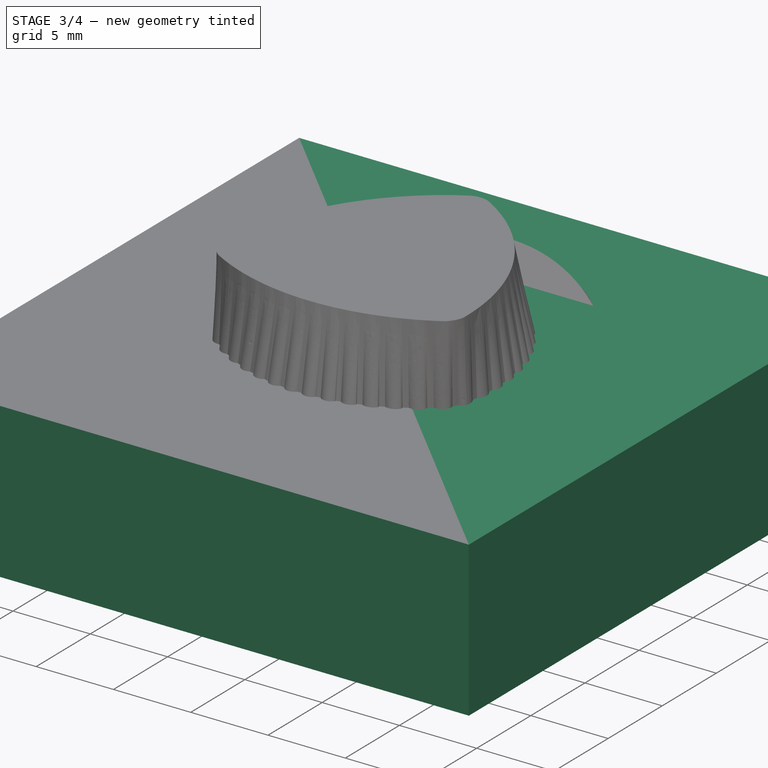
[diagram: stage 3 of 4 — iso view after this stage's code; geometry added in this stage tinted green]
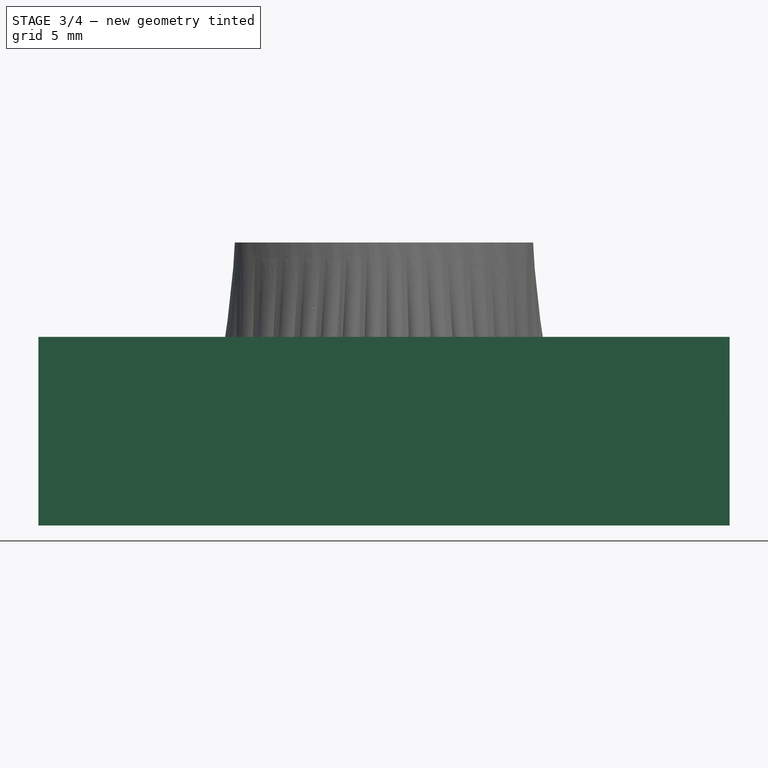
[diagram: stage 3 of 4 — front view after this stage's code; geometry added in this stage tinted green]
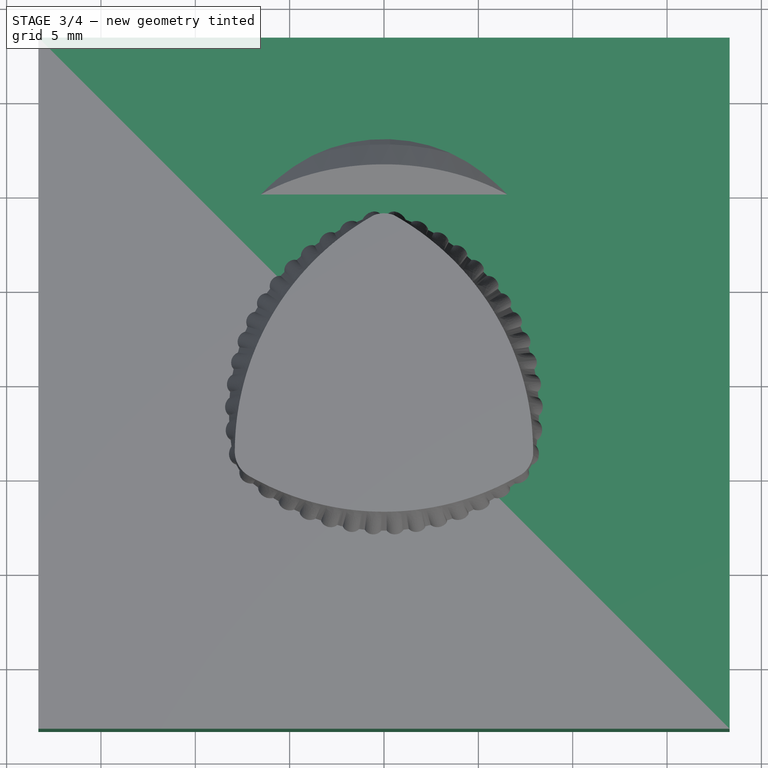
[diagram: stage 3 of 4 — top view after this stage's code; geometry added in this stage tinted green]
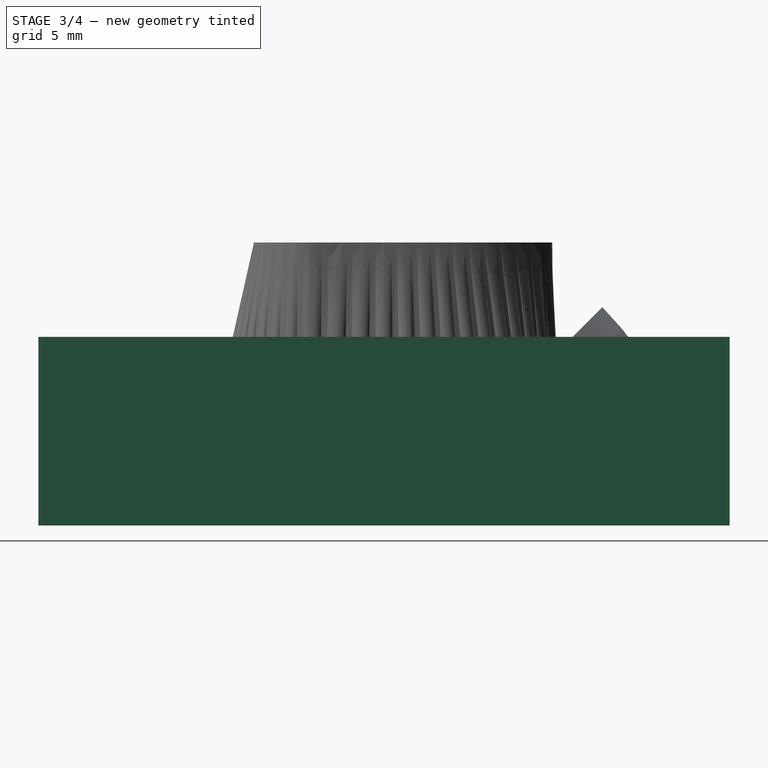
[diagram: stage 3 of 4 — right view after this stage's code; geometry added in this stage tinted green]
FEATURE [Sketcher::SketchObject] Sketch006006
  FullyConstrained = false
  MapMode = 5
  Support = -> [XY_Plane001]
  sketch-geometry (4):
    g0: LineSegment StartX=-18.3136 StartY=18.3136 StartZ=0 EndX=18.3136 EndY=18.3136 EndZ=0
    g1: LineSegment StartX=18.3136 StartY=18.3136 StartZ=0 EndX=18.3136 EndY=-18.3136 EndZ=0
    g2: LineSegment StartX=18.3136 StartY=-18.3136 StartZ=0 EndX=-18.3136 EndY=-18.3136 EndZ=0
    g3: LineSegment StartX=-18.3136 StartY=-18.3136 StartZ=0 EndX=-18.3136 EndY=18.3136 EndZ=0
  constraints (10):
    c: Coincident(g0,g1)
    c: Coincident(g1,g2)
    c: Coincident(g2,g3)
    c: Coincident(g3,g0)
    c: Horizontal(g0)
    c: Horizontal(g2)
    c: Vertical(g1)
    c: Vertical(g3)
    c: Symmetric(g1,g0,g-1)
    c: Equal(g1,g0)
FEATURE [PartDesign::Pad] Pad003
  Direction = (1,1,1)
  Length = 10
  Length2 = 100
  Profile = -> Sketch006006
  Refine = true
  Type = 0
FEATURE [PartDesign::Body] Body001
  Group = -> [Sketch006006,Pad003]
  Origin = -> Origin001
  Placement = pos=(0,0,13.5) rot=(0,1,0;0.174533rad)
  Tip = -> Pad003
FEATURE [Sketcher::SketchObject] Sketch006007
  FullyConstrained = false
  MapMode = 5
  Support = -> [XY_Plane002]
  sketch-geometry (4):
    g0: LineSegment StartX=-18.3136 StartY=18.3136 StartZ=0 EndX=18.3136 EndY=18.3136 EndZ=0
    g1: LineSegment StartX=18.3136 StartY=18.3136 StartZ=0 EndX=18.3136 EndY=-18.3136 EndZ=0
    g2: LineSegment StartX=18.3136 StartY=-18.3136 StartZ=0 EndX=-18.3136 EndY=-18.3136 EndZ=0
    g3: LineSegment StartX=-18.3136 StartY=-18.3136 StartZ=0 EndX=-18.3136 EndY=18.3136 EndZ=0
  constraints (10):
    c: Coincident(g0,g1)
    c: Coincident(g1,g2)
    c: Coincident(g2,g3)
    c: Coincident(g3,g0)
    c: Horizontal(g0)
    c: Horizontal(g2)
    c: Vertical(g1)
    c: Vertical(g3)
    c: Symmetric(g1,g0,g-1)
    c: Equal(g1,g0)
FEATURE [PartDesign::Pad] Pad004
  Direction = (1,1,1)
  Length = 10
  Length2 = 100
  Profile = -> Sketch006007
  Refine = true
  Type = 0
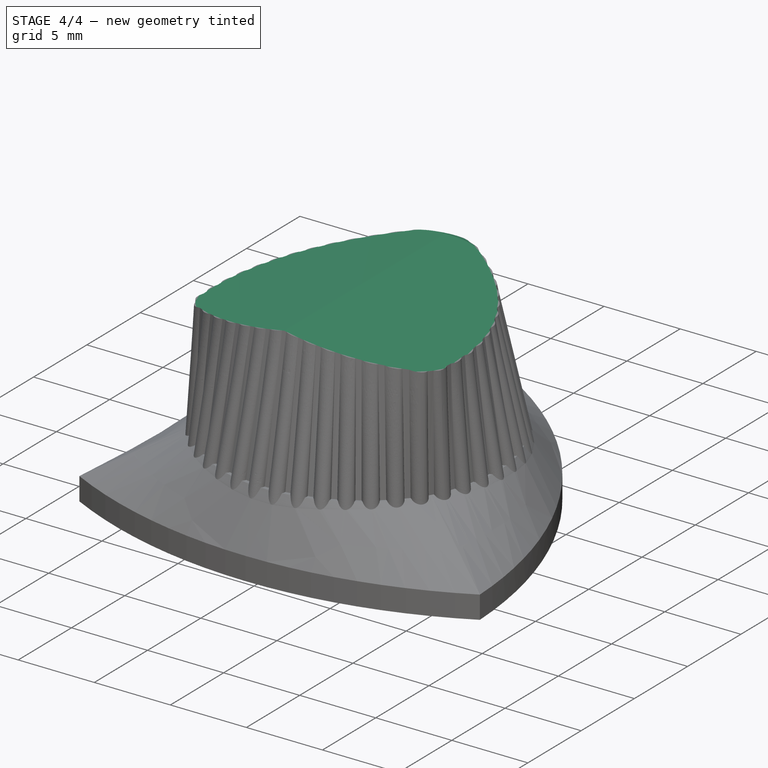
[diagram: stage 4 of 4 — iso view after this stage's code; geometry added in this stage tinted green]
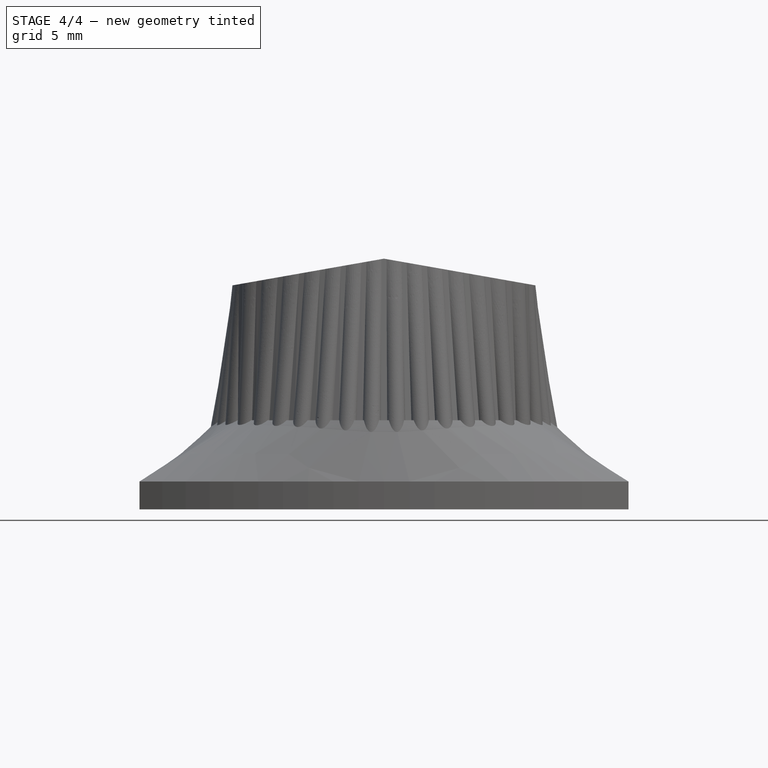
[diagram: stage 4 of 4 — front view after this stage's code; geometry added in this stage tinted green]
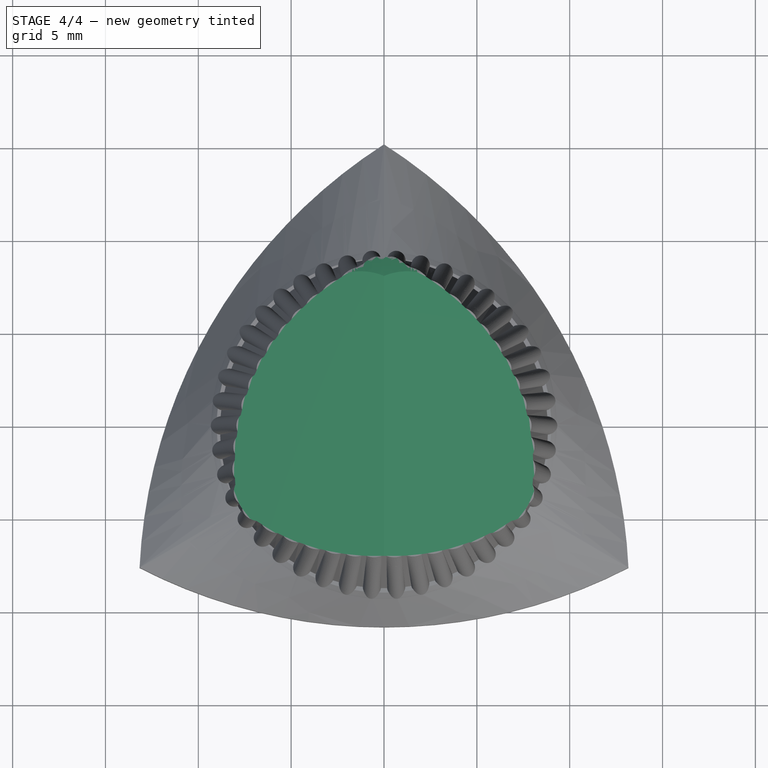
[diagram: stage 4 of 4 — top view after this stage's code; geometry added in this stage tinted green]
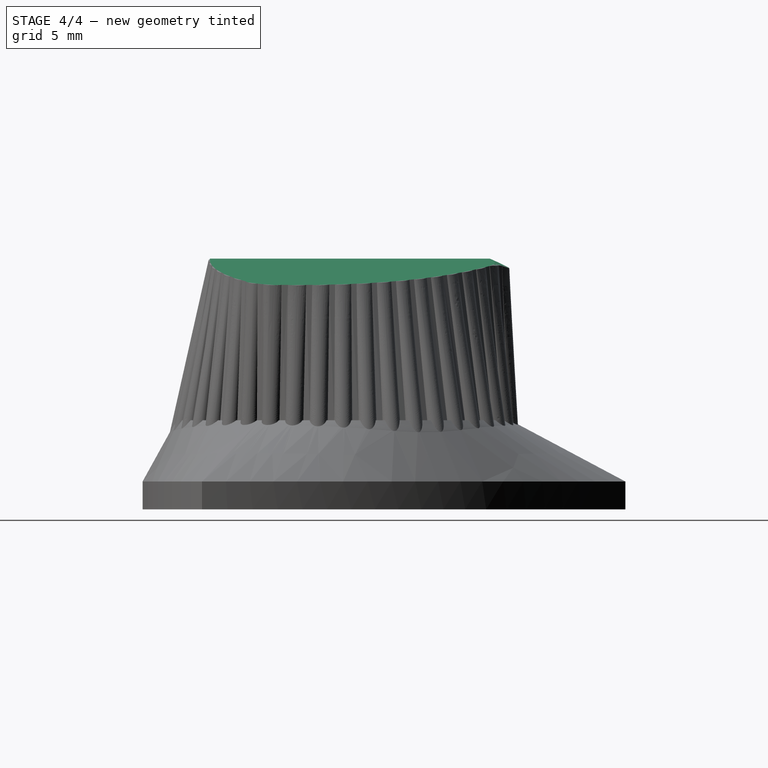
[diagram: stage 4 of 4 — right view after this stage's code; geometry added in this stage tinted green]
FEATURE [PartDesign::Body] Body002
  Group = -> [Sketch006007,Pad004]
  Origin = -> Origin002
  Placement = pos=(0,0,13.5) rot=(0,-1,0;0.174533rad)
  Tip = -> Pad004
FEATURE [PartDesign::Boolean] Boolean
  Group = -> [Body001,Body002]
  Refine = true
  Type = 0
FEATURE [PartDesign::Boolean] Boolean001
  BaseFeature = -> Pocket001
  Group = -> [Body003]
  Refine = true
  Type = 1
FEATURE [PartDesign::Body] Body004
  Group = -> [Sketch006010,Revolution]
  Origin = -> Origin004
  Placement = pos=(2e-15,2.52725,0.961832) rot=(1,0,0;0.392699rad)
  Tip = -> Revolution
FEATURE [PartDesign::Boolean] Boolean002
  BaseFeature = -> Boolean001
  Group = -> [Body004]
  Refine = true
  Type = 1
FEATURE [PartDesign::Body] Body
  Group = -> [Sketch,Pad,Sketch001,Sketch002,AdditiveLoft,Sketch003,Sketch004,Sketch005,Sketch007,Sketch008,Sketch006,Sketch006004,AdditiveLoft001,Sketch006008,Pocket,Sketch006009,Pocket001,Boolean001,Boolean002]
  Origin = -> Origin
  Tip = -> Boolean002
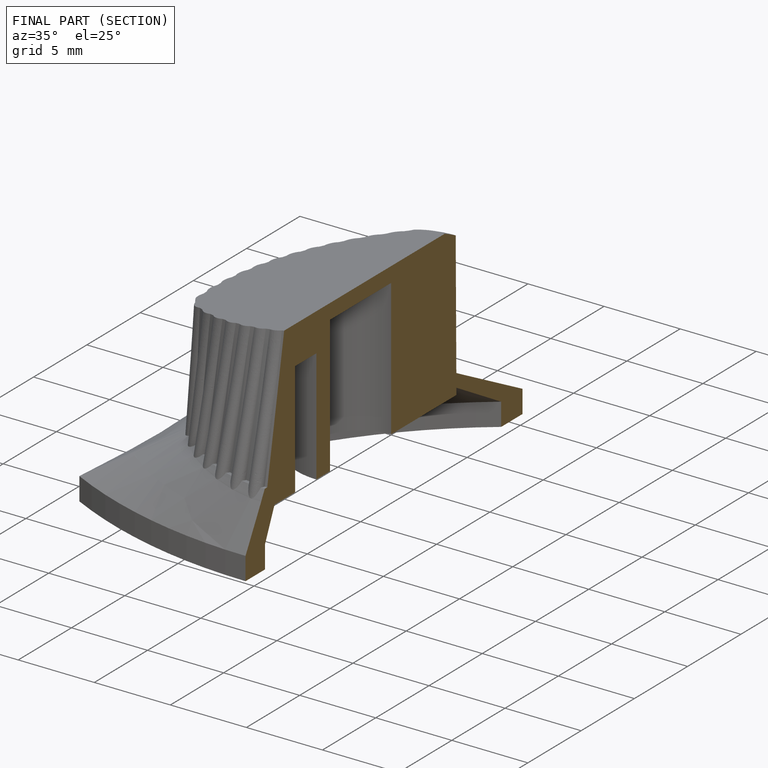
[diagram: finished part — half-section view (interior)]
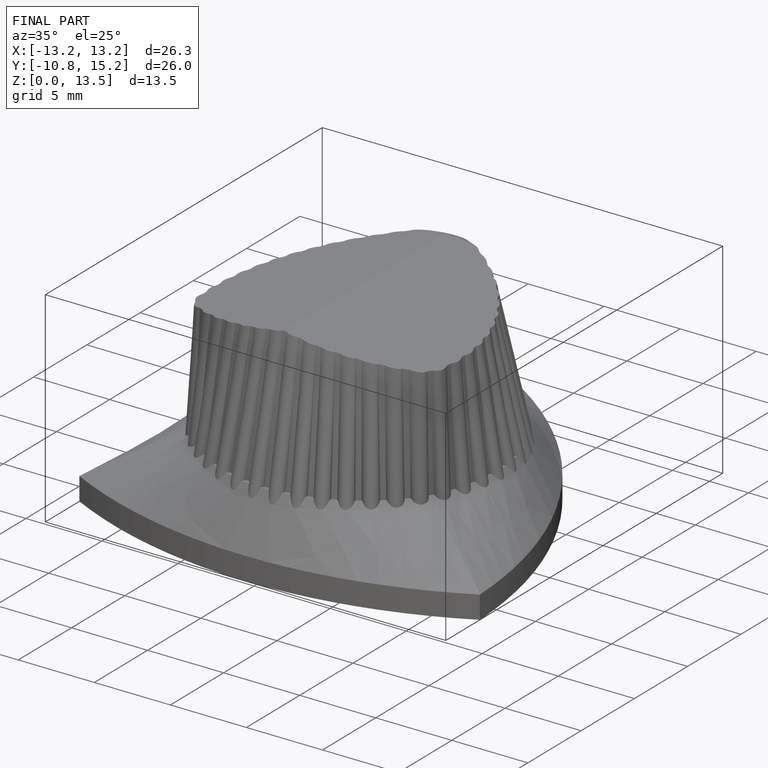
[diagram: finished part — iso view with bounding-box wireframe]
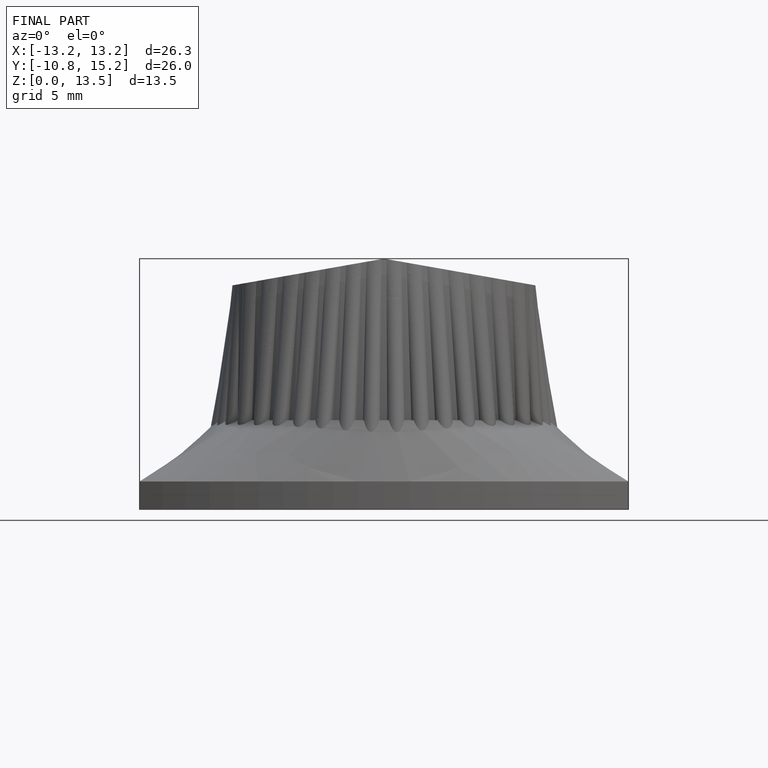
[diagram: finished part — front view with bounding-box wireframe]
